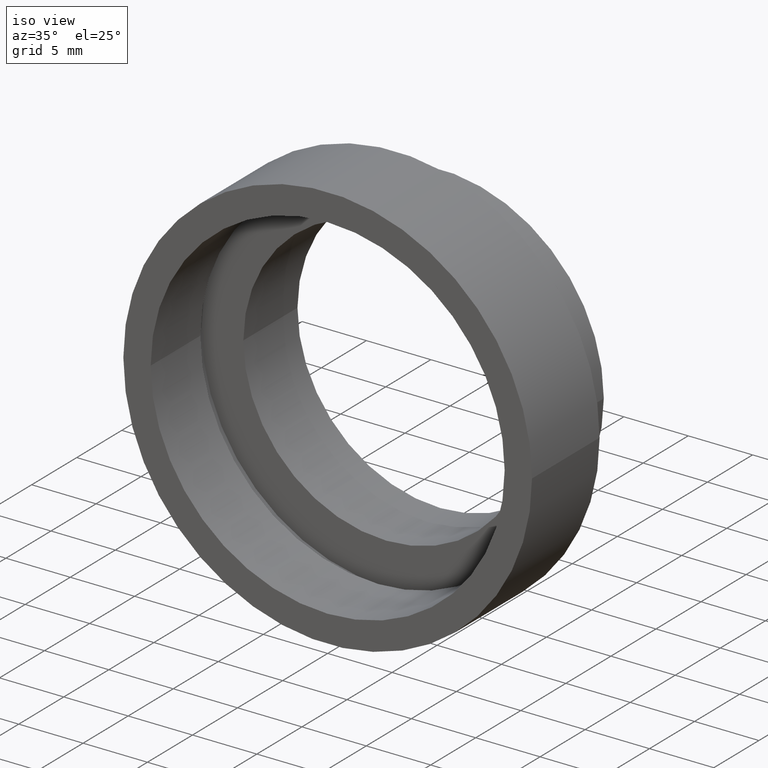
[diagram: clean part render]
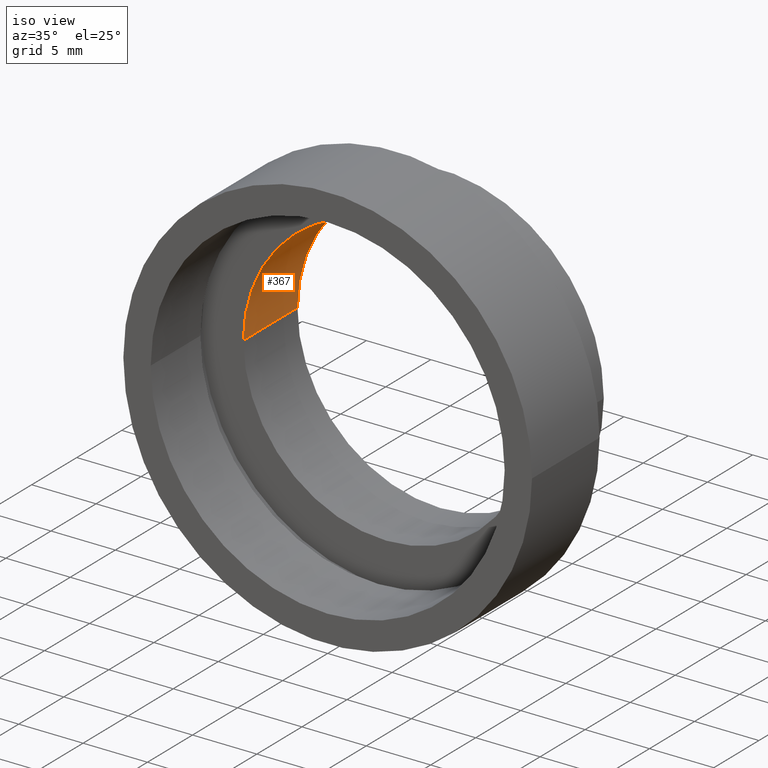
[diagram: same view with one face highlighted and labeled with its STEP entity id]
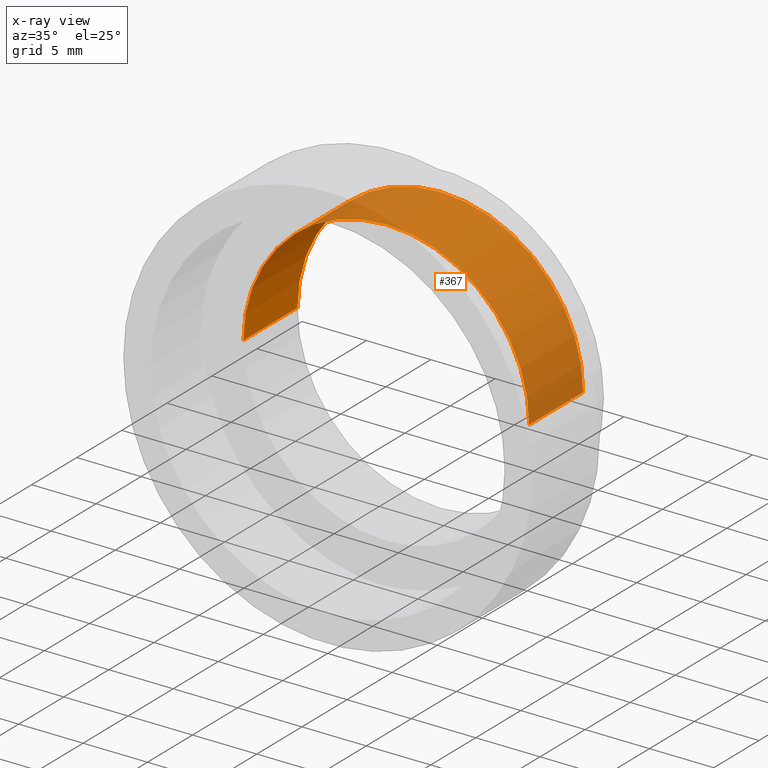
[diagram: x-ray of the same camera — body ghosted, the highlighted face saturated]
A machine part, iso view. The second image highlights one B-rep face of the part: STEP entity #367.
The next image is the same camera in x-ray: the body ghosted, the highlighted face saturated — about 82% of this face is hidden behind the body in this view.
In plain terms, the highlighted cylindrical surface (partial cylindrical patch) has radius 11.1 mm, axis along (-0, 1, -0).
Its self-contained STEP definition (entity closure, byte-faithful):
#15 = ORIENTED_EDGE ( 'NONE', *, *, #132, .F. ) ;
#16 = CARTESIAN_POINT ( 'NONE',  ( 11.10000000000000100, 16.88601823708207700, 1.359357947053562400E-015 ) ) ;
#26 = CYLINDRICAL_SURFACE ( 'NONE', #293, 11.10000000000000100 ) ;
#29 = VERTEX_POINT ( 'NONE', #560 ) ;
#38 = CARTESIAN_POINT ( 'NONE',  ( -11.10000000000000100, 12.49999999999999500, 0.0000000000000000000 ) ) ;
#43 = DIRECTION ( 'NONE',  ( -1.000000000000000000, -1.562813942321447500E-016, 0.0000000000000000000 ) ) ;
#45 = CARTESIAN_POINT ( 'NONE',  ( 11.10000000000000100, 6.499999999999999100, 1.359357947053562400E-015 ) ) ;
#51 = CARTESIAN_POINT ( 'NONE',  ( 5.371323195044474300E-016, 12.49999999999999600, 0.0000000000000000000 ) ) ;
#68 = AXIS2_PLACEMENT_3D ( 'NONE', #51, #518, #43 ) ;
#77 = VERTEX_POINT ( 'NONE', #515 ) ;
#103 = CARTESIAN_POINT ( 'NONE',  ( -11.10000000000000100, 16.88601823708207700, 0.0000000000000000000 ) ) ;
#132 = EDGE_CURVE ( 'NONE', #322, #77, #490, .T. ) ;
#160 = DIRECTION ( 'NONE',  ( -1.224646799147351000E-016, 1.000000000000000000, -0.0000000000000000000 ) ) ;
#185 = ORIENTED_EDGE ( 'NONE', *, *, #303, .T. ) ;
#187 = DIRECTION ( 'NONE',  ( -1.224646799147351000E-016, 1.000000000000000000, -0.0000000000000000000 ) ) ;
#203 = FACE_OUTER_BOUND ( 'NONE', #482, .T. ) ;
#210 = CIRCLE ( 'NONE', #465, 11.10000000000000000 ) ;
#236 = DIRECTION ( 'NONE',  ( -1.000000000000000000, -1.562813942321447800E-016, 0.0000000000000000000 ) ) ;
#257 = EDGE_CURVE ( 'NONE', #483, #77, #463, .T. ) ;
#293 = AXIS2_PLACEMENT_3D ( 'NONE', #469, #399, #472 ) ;
#303 = EDGE_CURVE ( 'NONE', #29, #483, #497, .T. ) ;
#322 = VERTEX_POINT ( 'NONE', #45 ) ;
#367 = ADVANCED_FACE ( 'NONE', ( #203 ), #26, .F. ) ;
#389 = CARTESIAN_POINT ( 'NONE',  ( 1.271920398992858000E-015, 6.499999999999997300, 0.0000000000000000000 ) ) ;
#399 = DIRECTION ( 'NONE',  ( -1.224646799147351000E-016, 1.000000000000000000, -0.0000000000000000000 ) ) ;
#439 = VECTOR ( 'NONE', #187, 1000.000000000000000 ) ;
#458 = VECTOR ( 'NONE', #477, 1000.000000000000000 ) ;
#463 = CIRCLE ( 'NONE', #68, 11.10000000000000100 ) ;
#465 = AXIS2_PLACEMENT_3D ( 'NONE', #389, #160, #236 ) ;
#466 = EDGE_CURVE ( 'NONE', #29, #322, #210, .T. ) ;
#469 = CARTESIAN_POINT ( 'NONE',  ( 0.0000000000000000000, 16.88601823708207700, 0.0000000000000000000 ) ) ;
#472 = DIRECTION ( 'NONE',  ( -1.000000000000000000, 0.0000000000000000000, 0.0000000000000000000 ) ) ;
#477 = DIRECTION ( 'NONE',  ( -1.224646799147351000E-016, 1.000000000000000000, -0.0000000000000000000 ) ) ;
#482 = EDGE_LOOP ( 'NONE', ( #15, #577, #185, #565 ) ) ;
#483 = VERTEX_POINT ( 'NONE', #38 ) ;
#490 = LINE ( 'NONE', #16, #439 ) ;
#497 = LINE ( 'NONE', #103, #458 ) ;
#515 = CARTESIAN_POINT ( 'NONE',  ( 11.10000000000000100, 12.49999999999999800, 1.359357947053562400E-015 ) ) ;
#518 = DIRECTION ( 'NONE',  ( -1.224646799147351000E-016, 1.000000000000000000, -0.0000000000000000000 ) ) ;
#560 = CARTESIAN_POINT ( 'NONE',  ( -11.09999999999999800, 6.499999999999995600, 0.0000000000000000000 ) ) ;
#565 = ORIENTED_EDGE ( 'NONE', *, *, #257, .T. ) ;
#577 = ORIENTED_EDGE ( 'NONE', *, *, #466, .F. ) ;